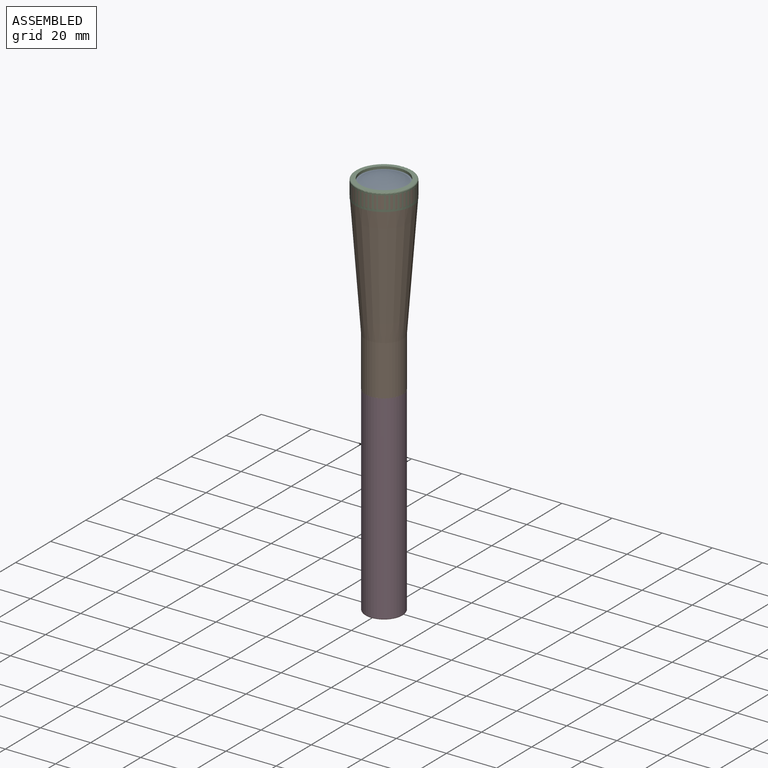
[diagram: assembled view]
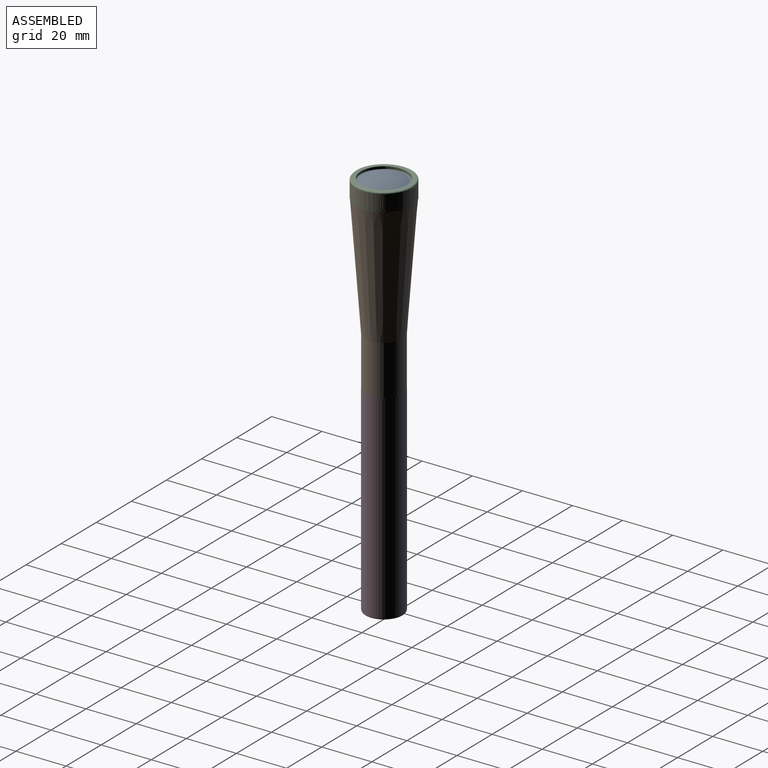
[diagram: assembled view, second angle]
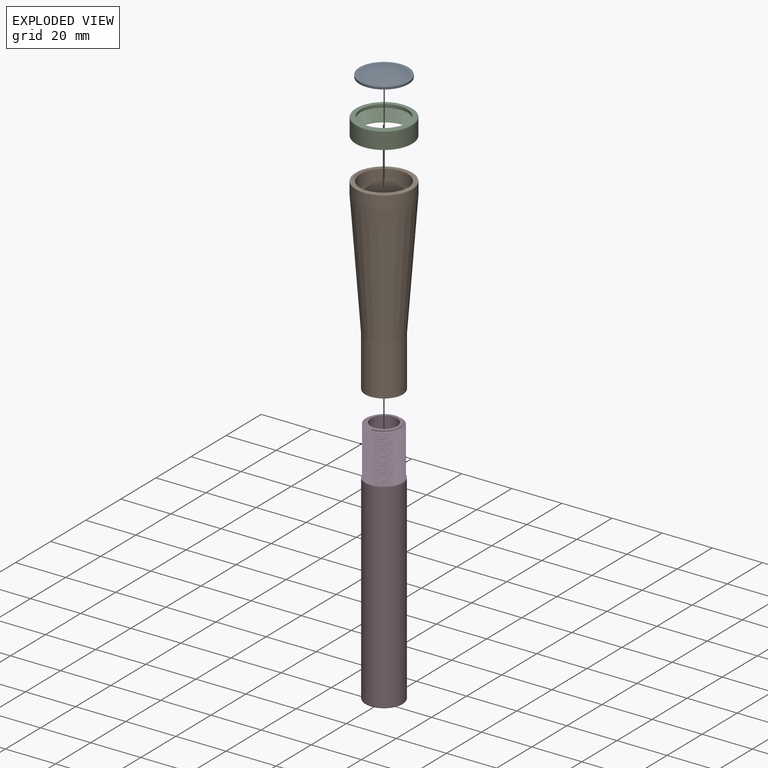
[diagram: exploded view]
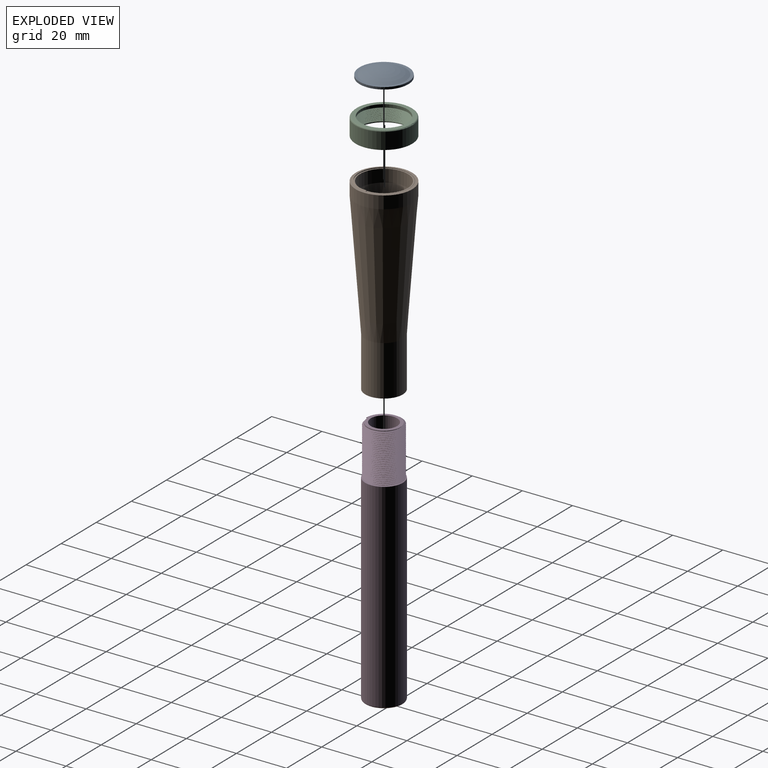
[diagram: exploded view, second angle]
ASSEMBLY  parts=4 mates=3
PART A: 5 faces, bbox 19.5x19.5x2.9 mm
  f0: cylinder r=9.75mm len=19.5mm, axis (0,0,-1), area 55.1mm2, adj f1,f2
  f1: plane 19.5x19.5mm, normal (0,0,1), area 63.6mm2, adj f0,f4
  f2: plane 19.5x19.5mm, normal (0,0,-1), area 298.6mm2, adj f0
  f3: plane 0.1x0.1mm, normal (0,0,1), area 0mm2, adj f4
  f4: torus R=0.05mm, axis (0,0,-1), area 247.7mm2, adj f1,f3
PART B: 21 faces, bbox 23x24.5x76.4 mm
  f0: plane 0.69x0.6mm, normal (0,1,0), area 0.3mm2, adj f1,f2,f3,f9,f12
  f1: bspline ~20.33x14.74mm, area 767.4mm2, adj f0,f2,f7,f9,f10,f12
  f2: bspline ~15.01x13mm, area 4.6mm2, adj f0,f1,f3,f12
  f3: cylinder r=6.5mm len=13mm, axis (0,0,-1), area 8.7mm2, adj f0,f2,f12
  f4: cylinder r=7.5mm len=20mm, axis (0,0,-1), area 942.5mm2, adj f5,f11
  f5: plane 15x15mm, normal (0,0,-1), area 44mm2, adj f4,f6
  f6: cylinder r=6.5mm len=13mm, axis (0,0,1), area 3.2mm2, adj f5,f7,f8,f10
  f7: plane 0.36x0.15mm, normal (0,-1,0), area 0mm2, adj f1,f6,f8,f10
  f8: bspline ~9.75x7.51mm, area 0.9mm2, adj f6,f7,f9,f10
  f9: bspline ~20.22x14.74mm, area 752.8mm2, adj f0,f1,f8,f10
  f10: torus R=1mm, axis (0,0,-1), area 14.1mm2, adj f1,f6,f7,f8,f9
  f11: cone r=7.5mm half-angle=4.3deg, axis (0,0,1), area 2955.1mm2, adj f4,f15
  f12: plane 13.08x13.08mm, normal (0,0,-1), area 28.3mm2, adj f0,f1,f2,f3,f13
  f13: cone r=9.5mm half-angle=4.3deg, axis (0,0,1), area 2400.7mm2, adj f12,f14
  f14: cylinder r=9.5mm len=19mm, axis (0,0,-1), area 298.5mm2, adj f13,f16
  f15: cylinder r=11.26mm len=22.52mm, axis (0,0,-1), area 353.7mm2, adj f11,f16
  f16: plane 22.97x22.97mm, normal (0,0,1), area 101.7mm2, adj f14,f15,f17,f18,f19,f20
  f17: plane 0.45x0.42mm, normal (0,1,0), area 0.1mm2, adj f16,f18,f19,f20
  f18: cylinder r=10mm len=20mm, axis (0,0,1), area 12.8mm2, adj f16,f17,f19
  f19: bspline ~24.07x20.85mm, area 20.7mm2, adj f16,f17,f18,f20
  f20: bspline ~20.85x12.04mm, area 5.5mm2, adj f16,f17,f19
PART C: 21 faces, bbox 24.4x24.4x7 mm
  f0: cylinder r=10.25mm len=20.5mm, axis (0,0,-1), area 0.7mm2, adj f1,f10,f16,f17
  f1: cylinder r=10.25mm len=20.5mm, axis (0,0,-1), area 0.6mm2, adj f0,f2,f16,f17
  f2: cylinder r=10.25mm len=20.5mm, axis (0,0,-1), area 0.7mm2, adj f1,f3,f16,f17
  f3: cylinder r=10.25mm len=20.5mm, axis (0,0,-1), area 0.7mm2, adj f2,f4,f16,f17
  f4: cylinder r=10.25mm len=20.5mm, axis (0,0,-1), area 0.6mm2, adj f3,f5,f16,f17
  f5: cylinder r=10.25mm len=20.5mm, axis (0,0,-1), area 0.7mm2, adj f4,f6,f16,f17
  f6: cylinder r=10.25mm len=20.5mm, axis (0,0,-1), area 0.6mm2, adj f5,f7,f16,f17
  f7: cylinder r=10.25mm len=20.5mm, axis (0,0,-1), area 0.6mm2, adj f6,f8,f16,f17
  f8: cylinder r=10.25mm len=20.5mm, axis (0,0,-1), area 0.6mm2, adj f7,f9,f16,f17
  f9: cylinder r=10.25mm len=20.5mm, axis (0,0,-1), area 48.9mm2, adj f8,f14,f16,f19
  f10: cylinder r=10.25mm len=20.5mm, axis (0,0,-1), area 16.1mm2, adj f0,f13,f15,f17
  f11: cylinder r=11.25mm len=22.5mm, axis (0,0,-1), area 459.5mm2, adj f13,f20
  f12: plane 21.5x21.5mm, normal (0,0,1), area 94.2mm2, adj f18,f20
  f13: plane 22.5x22.5mm, normal (0,0,-1), area 67.5mm2, adj f10,f11
  f14: plane 0.49x0.42mm, normal (0,1,0), area 0.1mm2, adj f9,f16,f17
  f15: plane 0.49x0.42mm, normal (0,-1,0), area 0.1mm2, adj f10,f16,f17
  f16: bspline ~23.67x20.5mm, area 309.2mm2, adj f0,f1,f2,f3,f4,f5,f6,f7
  f17: bspline ~23.67x20.5mm, area 309mm2, adj f0,f1,f2,f3,f4,f5,f6,f7
  f18: cylinder r=9.25mm len=18.5mm, axis (0,0,1), area 58.1mm2, adj f12,f19
  f19: plane 20.5x20.5mm, normal (0,0,-1), area 61.3mm2, adj f9,f18
  f20: torus R=10.75mm, axis (0,0,1), area 54.6mm2, adj f11,f12
PART D: 12 faces, bbox 16.7x17.1x100.4 mm
  f0: cylinder r=5.25mm len=97.87mm, axis (0,0,-1), area 3228.5mm2, adj f9,f10
  f1: cylinder r=6.5mm len=13mm, axis (0,0,-1), area 6.3mm2, adj f2,f3,f9
  f2: plane 0.69x0.52mm, normal (0,1,0), area 0.2mm2, adj f1,f3,f4,f8,f9
  f3: bspline ~15.28x13.23mm, area 4mm2, adj f1,f2,f4,f9
  f4: bspline ~20.33x16.61mm, area 857.1mm2, adj f2,f3,f6,f8,f9
  f5: cylinder r=7.5mm len=79.5mm, axis (0,0,-1), area 3746.3mm2, adj f6,f11
  f6: plane 15.47x15.47mm, normal (0,0,1), area 26.9mm2, adj f4,f5,f8
  f7: plane 14x14mm, normal (0,0,-1), area 153.9mm2, adj f11
  f8: bspline ~20x16.61mm, area 843.2mm2, adj f2,f4,f6
  f9: torus R=1mm, axis (0,0,1), area 49.2mm2, adj f0,f1,f2,f3,f4
  f10: plane 10.5x10.5mm, normal (0,0,1), area 86.6mm2, adj f0
  f11: torus R=7mm, axis (0,0,1), area 36.1mm2, adj f5,f7
PLACE A t=(-17.82,38.4,120.87)mm
PLACE B t=(-17.82,38.4,46.77)mm
PLACE C t=(-17.82,38.4,115.77)mm
PLACE D rot(axis=(0,0,-1),90deg) t=(-17.82,38.4,-33.1)mm
MATE cylindrical C.f18 <-> B.f13  axis (0,0,-1) through (-17.82,38.4,121.77)mm
MATE fastened A.f4 <-> C.f18  axis (0,0,1) through (-17.82,38.4,121.77)mm
MATE cylindrical D.f9 <-> B.f4  axis (0,0,-1) through (-17.82,38.4,66.77)mm
